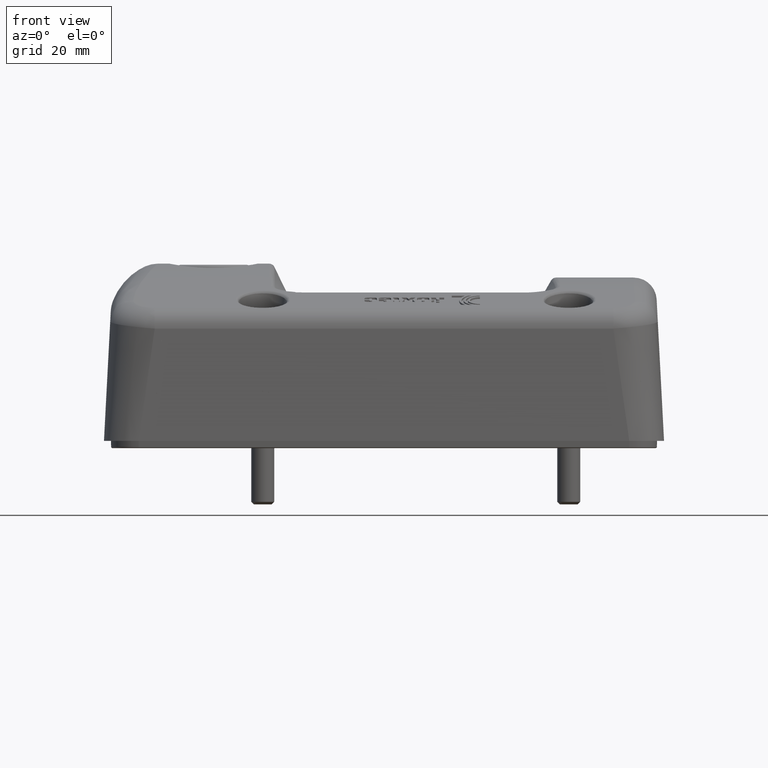
[diagram: clean part render]
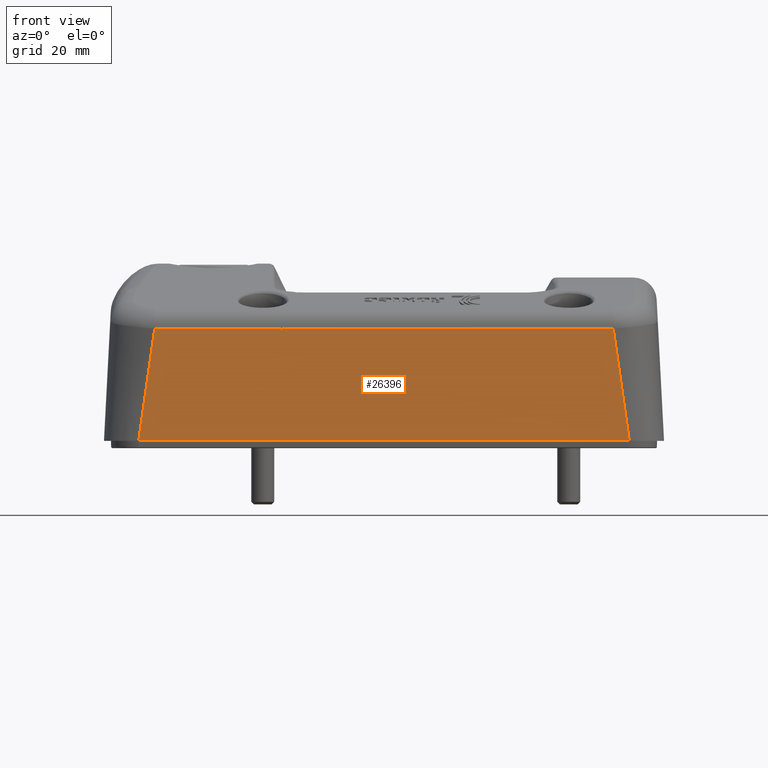
[diagram: same view with one face highlighted and labeled with its STEP entity id]
A machine part, front view. The second image highlights one B-rep face of the part: STEP entity #26396.
In plain terms, the highlighted planar face has unit normal (0, 0.9986, -0.0523).
Its self-contained STEP definition (entity closure, byte-faithful):
#12995=CARTESIAN_POINT('',(36.98010341009001,-35.000000000000007,-20.000000000000004));
#12996=VERTEX_POINT('',#12995);
#13009=CARTESIAN_POINT('',(-47.980102994580008,-35.000000000000007,-20.000000000000004));
#13010=VERTEX_POINT('',#13009);
#13011=CARTESIAN_POINT('',(-47.980102994580008,-35.000000000000007,-20.000000000000004));
#13012=DIRECTION('',(1.0,0.0,0.0));
#13013=VECTOR('',#13012,84.960206404670018);
#13014=LINE('',#13011,#13013);
#13015=EDGE_CURVE('',#13010,#12996,#13014,.T.);
#26338=CARTESIAN_POINT('',(34.210609389060011,-33.98108568207001,-0.5579584703163));
#26339=VERTEX_POINT('',#26338);
#26362=CARTESIAN_POINT('',(34.210609389060011,-33.98108568207001,-0.5579584703163));
#26363=DIRECTION('',(0.140835661179995,-0.051814328018698,-0.988676181543767));
#26364=VECTOR('',#26363,19.664721263261004);
#26365=LINE('',#26362,#26364);
#26366=EDGE_CURVE('',#26339,#12996,#26365,.T.);
#26373=CARTESIAN_POINT('',(41.228113730325511,-35.050945711078207,-20.972102076736704));
#26374=DIRECTION('',(0.0,0.998629534754574,-0.052335956242939));
#26375=DIRECTION('',(0.0,0.052335956242939,0.998629534754574));
#26376=AXIS2_PLACEMENT_3D('',#26373,#26374,#26375);
#26377=PLANE('',#26376);
#26378=ORIENTED_EDGE('',*,*,#26366,.F.);
#26379=CARTESIAN_POINT('',(-45.210582957720007,-33.981087229820012,-0.5579886392707));
#26380=VERTEX_POINT('',#26379);
#26381=CARTESIAN_POINT('',(-45.210582957720007,-33.981087229820012,-0.5579886392707));
#26382=DIRECTION('',(0.999999999999928,0.000000019487836,0.000000379860256));
#26383=VECTOR('',#26382,79.421192346785787);
#26384=LINE('',#26381,#26383);
#26385=EDGE_CURVE('',#26380,#26339,#26384,.T.);
#26386=ORIENTED_EDGE('',*,*,#26385,.F.);
#26387=CARTESIAN_POINT('',(-45.210582957720007,-33.981087229820012,-0.5579886392707));
#26388=DIRECTION('',(-0.140837172104001,-0.05181431846067,-0.988675966814307));
#26389=VECTOR('',#26388,19.664695019718263);
#26390=LINE('',#26387,#26389);
#26391=EDGE_CURVE('',#26380,#13010,#26390,.T.);
#26392=ORIENTED_EDGE('',*,*,#26391,.T.);
#26393=ORIENTED_EDGE('',*,*,#13015,.T.);
#26394=EDGE_LOOP('',(#26378,#26386,#26392,#26393));
#26395=FACE_OUTER_BOUND('',#26394,.T.);
#26396=ADVANCED_FACE('',(#26395),#26377,.F.);